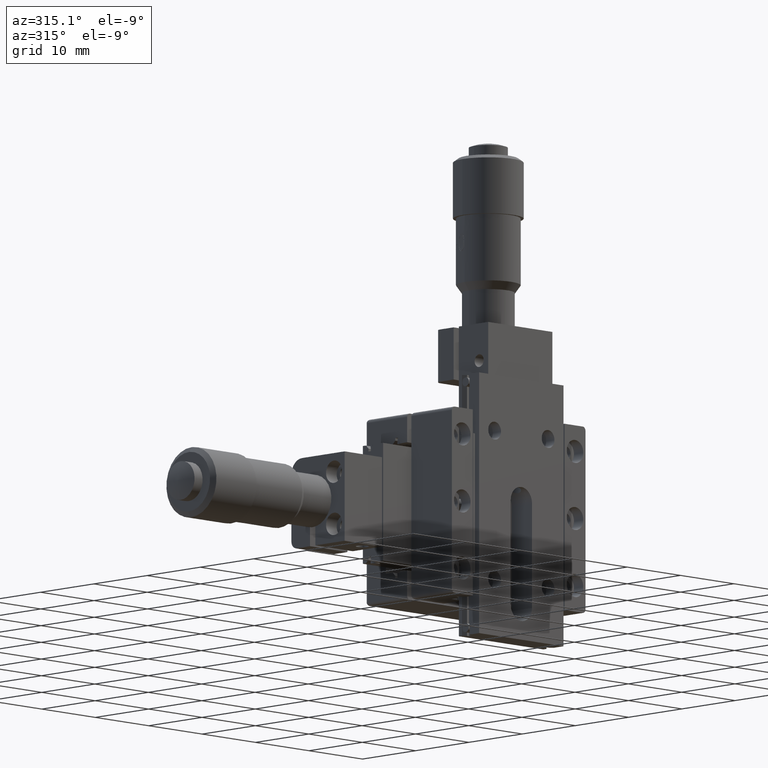
[diagram: clean part render]
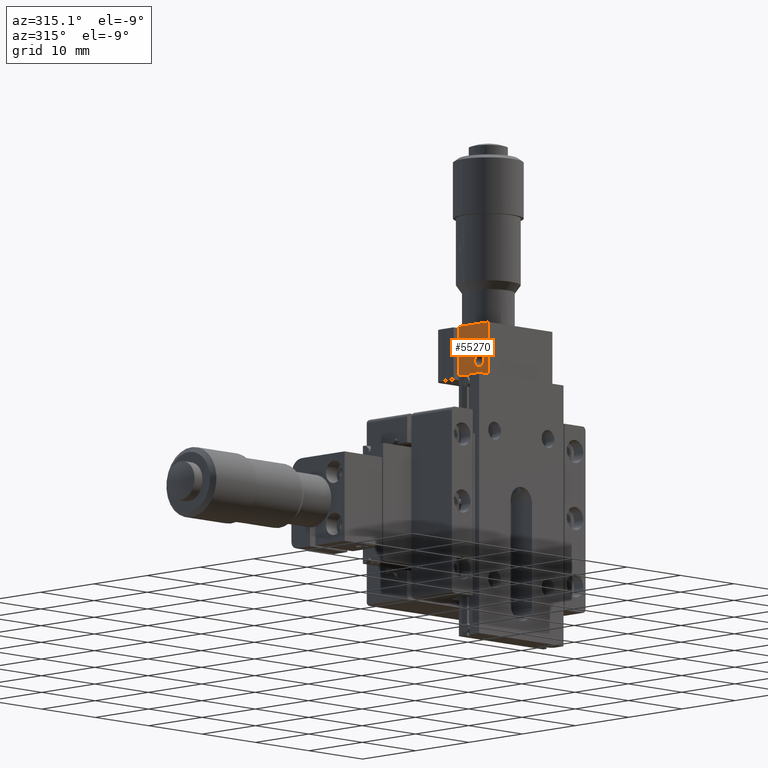
[diagram: same view with one face highlighted and labeled with its STEP entity id]
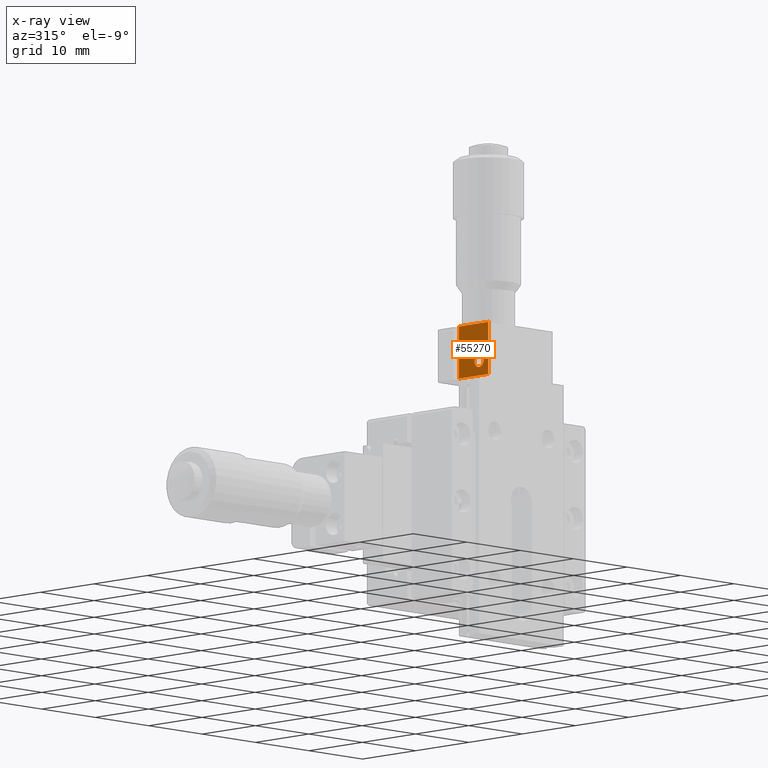
[diagram: x-ray of the same camera — body ghosted, the highlighted face saturated]
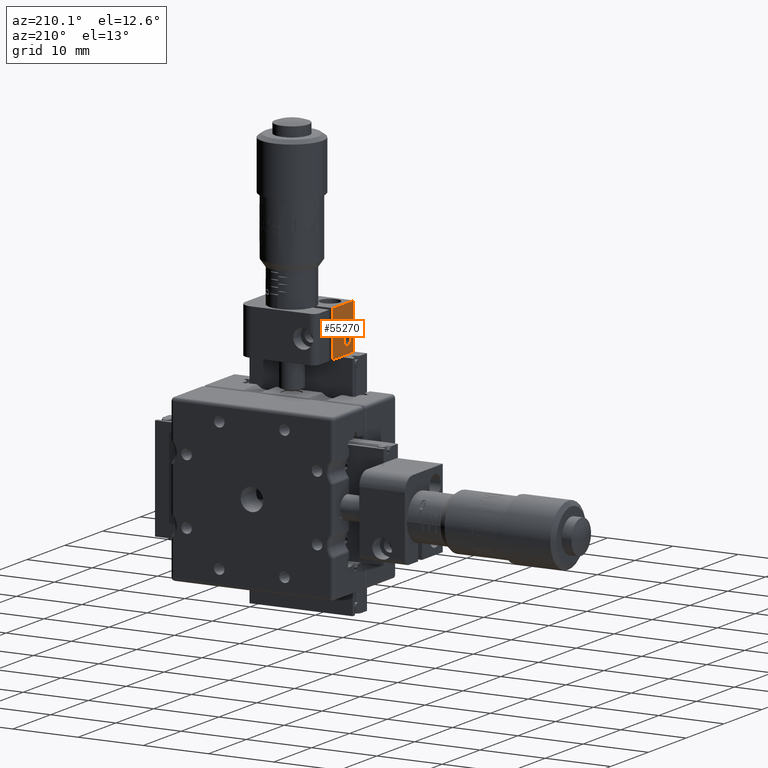
[diagram: same view with one face highlighted and labeled with its STEP entity id]
A machine part, auxiliary view. The second image highlights one B-rep face of the part: STEP entity #55270.
The next image is the same camera in x-ray: the body ghosted, the highlighted face saturated — about 0% of this face is hidden behind the body in this view.
A second angle (auxiliary view) of the same face is appended — the face is thin or edge-on in the first view.
In plain terms, the highlighted planar face has unit normal (1, 0, -0).
Its self-contained STEP definition (entity closure, byte-faithful):
#898 = CARTESIAN_POINT ( 'NONE',  ( -5.999999999999139400, 0.2000000000000080000, 24.50000000000000000 ) ) ;
#1789 = LINE ( 'NONE', #32335, #57957 ) ;
#2734 = CARTESIAN_POINT ( 'NONE',  ( -5.999999999999128700, 0.2000000000000070900, 17.50000000000000000 ) ) ;
#3206 = AXIS2_PLACEMENT_3D ( 'NONE', #53541, #4557, #42646 ) ;
#3662 = DIRECTION ( 'NONE',  ( -2.775557561562894800E-016, -1.142172911347805300E-016, 1.000000000000000000 ) ) ;
#4457 = DIRECTION ( 'NONE',  ( -1.000000000000000000, 4.887249643423973400E-016, 5.551115123125779700E-016 ) ) ;
#4557 = DIRECTION ( 'NONE',  ( 1.000000000000000000, 2.461221020618068100E-016, -5.551115123125780700E-016 ) ) ;
#4666 = EDGE_LOOP ( 'NONE', ( #11452, #43779, #16710, #63345 ) ) ;
#4987 = CARTESIAN_POINT ( 'NONE',  ( -5.999999999999142000, 1.900000000000005200, 20.34999999999999400 ) ) ;
#11452 = ORIENTED_EDGE ( 'NONE', *, *, #61384, .T. ) ;
#15513 = PLANE ( 'NONE',  #3206 ) ;
#15845 = LINE ( 'NONE', #2734, #43916 ) ;
#16710 = ORIENTED_EDGE ( 'NONE', *, *, #50156, .F. ) ;
#16939 = VERTEX_POINT ( 'NONE', #50993 ) ;
#20170 = VERTEX_POINT ( 'NONE', #26614 ) ;
#21676 = VECTOR ( 'NONE', #31215, 1000.000000000000000 ) ;
#22502 = DIRECTION ( 'NONE',  ( -2.461221020618071500E-016, 1.000000000000000000, -5.082140893937399600E-016 ) ) ;
#26614 = CARTESIAN_POINT ( 'NONE',  ( -5.999999999999142900, 1.900000000000004100, 18.65000000000001300 ) ) ;
#30454 = DIRECTION ( 'NONE',  ( 0.0000000000000000000, 0.0000000000000000000, 1.000000000000000000 ) ) ;
#31215 = DIRECTION ( 'NONE',  ( -2.461221020618071500E-016, 1.000000000000000000, -5.082140893937399600E-016 ) ) ;
#32335 = CARTESIAN_POINT ( 'NONE',  ( -5.999999999999134900, 5.699999999999983300, 17.50000000000000000 ) ) ;
#33261 = VERTEX_POINT ( 'NONE', #50644 ) ;
#33347 = EDGE_CURVE ( 'NONE', #20170, #68234, #60455, .T. ) ;
#34874 = EDGE_CURVE ( 'NONE', #36069, #33261, #1789, .T. ) ;
#36069 = VERTEX_POINT ( 'NONE', #66110 ) ;
#38923 = CARTESIAN_POINT ( 'NONE',  ( -5.999999999999128700, 0.2000000000000070900, 17.50000000000000000 ) ) ;
#42646 = DIRECTION ( 'NONE',  ( 2.461221020618071000E-016, -1.000000000000000000, 5.082140893937398700E-016 ) ) ;
#43779 = ORIENTED_EDGE ( 'NONE', *, *, #34874, .F. ) ;
#43916 = VECTOR ( 'NONE', #3662, 1000.000000000000000 ) ;
#45631 = AXIS2_PLACEMENT_3D ( 'NONE', #52046, #57992, #30454 ) ;
#46076 = ORIENTED_EDGE ( 'NONE', *, *, #63868, .F. ) ;
#48706 = CARTESIAN_POINT ( 'NONE',  ( -5.999999999999142000, 1.900000000000005200, 19.50000000000000400 ) ) ;
#49937 = ORIENTED_EDGE ( 'NONE', *, *, #33347, .F. ) ;
#50156 = EDGE_CURVE ( 'NONE', #16939, #36069, #53125, .T. ) ;
#50210 = LINE ( 'NONE', #65339, #62958 ) ;
#50644 = CARTESIAN_POINT ( 'NONE',  ( -5.999999999999139400, 5.699999999999983300, 24.50000000000000000 ) ) ;
#50993 = CARTESIAN_POINT ( 'NONE',  ( -5.999999999999128700, 0.2000000000000070900, 17.50000000000000000 ) ) ;
#51267 = AXIS2_PLACEMENT_3D ( 'NONE', #48706, #4457, #59159 ) ;
#52046 = CARTESIAN_POINT ( 'NONE',  ( -5.999999999999142000, 1.900000000000005200, 19.50000000000000400 ) ) ;
#53125 = LINE ( 'NONE', #38923, #21676 ) ;
#53431 = DIRECTION ( 'NONE',  ( -2.775557561562894800E-016, -1.142172911347805300E-016, 1.000000000000000000 ) ) ;
#53541 = CARTESIAN_POINT ( 'NONE',  ( -5.999999999999128700, 0.2000000000000070900, 17.50000000000000000 ) ) ;
#55062 = EDGE_LOOP ( 'NONE', ( #46076, #49937 ) ) ;
#55270 = ADVANCED_FACE ( 'NONE', ( #63975, #68269 ), #15513, .F. ) ;
#57409 = EDGE_CURVE ( 'NONE', #16939, #61283, #15845, .T. ) ;
#57957 = VECTOR ( 'NONE', #53431, 1000.000000000000000 ) ;
#57992 = DIRECTION ( 'NONE',  ( -1.000000000000000000, 4.887249643423973400E-016, 5.551115123125779700E-016 ) ) ;
#59159 = DIRECTION ( 'NONE',  ( 0.0000000000000000000, 0.0000000000000000000, 1.000000000000000000 ) ) ;
#60455 = CIRCLE ( 'NONE', #45631, 0.8499999999999896500 ) ;
#61283 = VERTEX_POINT ( 'NONE', #898 ) ;
#61384 = EDGE_CURVE ( 'NONE', #61283, #33261, #50210, .T. ) ;
#62958 = VECTOR ( 'NONE', #22502, 1000.000000000000000 ) ;
#63345 = ORIENTED_EDGE ( 'NONE', *, *, #57409, .T. ) ;
#63868 = EDGE_CURVE ( 'NONE', #68234, #20170, #67842, .T. ) ;
#63975 = FACE_BOUND ( 'NONE', #55062, .T. ) ;
#65339 = CARTESIAN_POINT ( 'NONE',  ( -5.999999999999139400, 0.2000000000000080000, 24.50000000000000000 ) ) ;
#66110 = CARTESIAN_POINT ( 'NONE',  ( -5.999999999999134900, 5.699999999999983300, 17.50000000000000000 ) ) ;
#67842 = CIRCLE ( 'NONE', #51267, 0.8499999999999896500 ) ;
#68234 = VERTEX_POINT ( 'NONE', #4987 ) ;
#68269 = FACE_OUTER_BOUND ( 'NONE', #4666, .T. ) ;